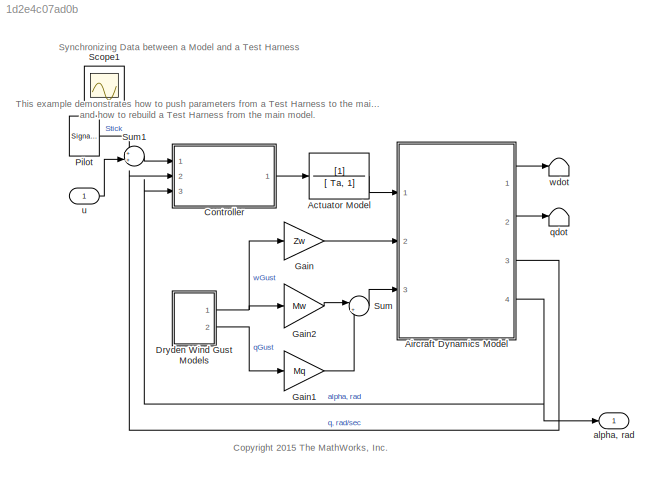
MODEL slx_1d2e4c07ad0b
KIND model
CONFIG AbsTol = 1e-6
CONFIG FixedStep = auto
CONFIG MaxStep = auto
CONFIG MinStep = auto
CONFIG RelTol = 1e-4
CONFIG SampleTimeConstraint = Unconstrained
CONFIG Solver = ode23
CONFIG SolverMode = SingleTasking
CONFIG SolverName = ode23
CONFIG StartTime = 0.0
CONFIG StopTime = 60
WORKSPACE source: MATLAB code (in-file)
WORKSPACE code: slexAircraftData
BLOCK [TransferFcn] Actuator Model
  Denominator = [ Ta, 1]
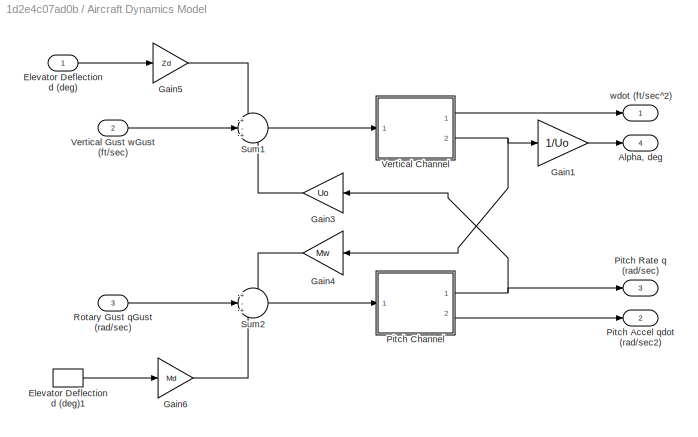
BLOCK [SubSystem] Aircraft Dynamics Model
  Ports = [3, 4]
  RequestExecContextInheritance = off
  Variant = off
BLOCK [Outport] Aircraft Dynamics Model/Alpha, deg
  IconDisplay = Port number
  InitialOutput = 0
  Port = 4
BLOCK [Inport] Aircraft Dynamics Model/Elevator Deflection d (deg)
  IconDisplay = Port number
BLOCK [InportShadow] Aircraft Dynamics Model/Elevator Deflection d (deg)1
  IconDisplay = Port number
BLOCK [Gain] Aircraft Dynamics Model/Gain1
  Gain = 1/Uo
BLOCK [Gain] Aircraft Dynamics Model/Gain3
  Gain = Uo
BLOCK [Gain] Aircraft Dynamics Model/Gain4
  Gain = Mw
BLOCK [Gain] Aircraft Dynamics Model/Gain5
  Gain = Zd
BLOCK [Gain] Aircraft Dynamics Model/Gain6
  Gain = Md
BLOCK [Outport] Aircraft Dynamics Model/Pitch Accel qdot (rad//sec2)
  IconDisplay = Port number
  InitialOutput = 0
  Port = 2
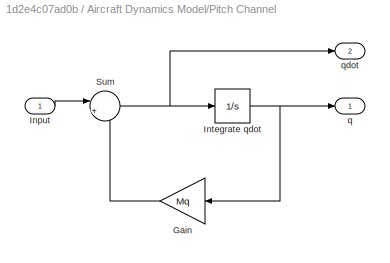
BLOCK [SubSystem] Aircraft Dynamics Model/Pitch Channel
  Ports = [1, 2]
  RequestExecContextInheritance = off
  Variant = off
BLOCK [Gain] Aircraft Dynamics Model/Pitch Channel/Gain
  Gain = Mq
BLOCK [Inport] Aircraft Dynamics Model/Pitch Channel/Input
  IconDisplay = Port number
BLOCK [Integrator] Aircraft Dynamics Model/Pitch Channel/Integrate qdot
  Ports = [1, 1]
BLOCK [Sum] Aircraft Dynamics Model/Pitch Channel/Sum
  IconShape = round
  Inputs = |++
  Ports = [2, 1]
BLOCK [Outport] Aircraft Dynamics Model/Pitch Channel/q
  IconDisplay = Port number
  InitialOutput = 0
BLOCK [Outport] Aircraft Dynamics Model/Pitch Channel/qdot
  IconDisplay = Port number
  InitialOutput = 0
  Port = 2
BLOCK [Outport] Aircraft Dynamics Model/Pitch Rate q (rad//sec)
  IconDisplay = Port number
  InitialOutput = 0
  Port = 3
BLOCK [Inport] Aircraft Dynamics Model/Rotary Gust qGust (rad//sec)
  IconDisplay = Port number
  Port = 3
BLOCK [Sum] Aircraft Dynamics Model/Sum1
  IconShape = round
  Inputs = +-+
  Ports = [3, 1]
BLOCK [Sum] Aircraft Dynamics Model/Sum2
  IconShape = round
  Inputs = +-+
  Ports = [3, 1]
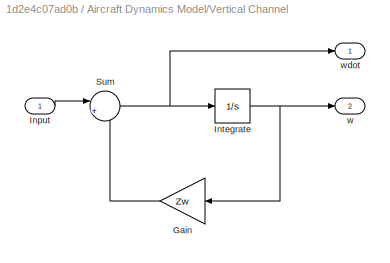
BLOCK [SubSystem] Aircraft Dynamics Model/Vertical Channel
  Ports = [1, 2]
  RequestExecContextInheritance = off
  Variant = off
BLOCK [Gain] Aircraft Dynamics Model/Vertical Channel/Gain
  Gain = Zw
BLOCK [Inport] Aircraft Dynamics Model/Vertical Channel/Input
  IconDisplay = Port number
BLOCK [Integrator] Aircraft Dynamics Model/Vertical Channel/Integrate
  Ports = [1, 1]
BLOCK [Sum] Aircraft Dynamics Model/Vertical Channel/Sum
  IconShape = round
  Inputs = |++
  Ports = [2, 1]
BLOCK [Outport] Aircraft Dynamics Model/Vertical Channel/w
  IconDisplay = Port number
  InitialOutput = 0
  Port = 2
BLOCK [Outport] Aircraft Dynamics Model/Vertical Channel/wdot
  IconDisplay = Port number
  InitialOutput = 0
BLOCK [Inport] Aircraft Dynamics Model/Vertical Gust wGust (ft//sec)
  IconDisplay = Port number
  Port = 2
BLOCK [Outport] Aircraft Dynamics Model/wdot (ft//sec^2)
  IconDisplay = Port number
  InitialOutput = 0
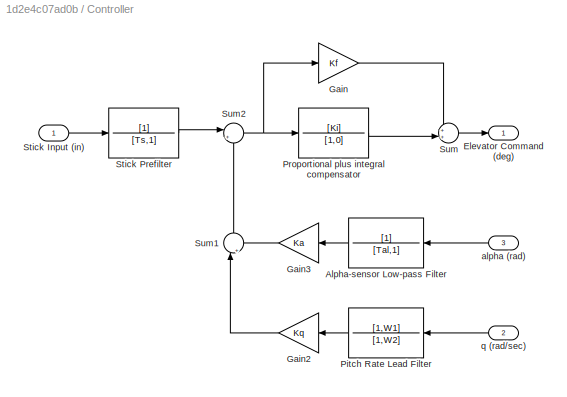
BLOCK [SubSystem] Controller
  Ports = [3, 1]
  RequestExecContextInheritance = off
  Variant = off
BLOCK [TransferFcn] Controller/Alpha-sensor Low-pass Filter
  Denominator = [Tal,1]
BLOCK [Outport] Controller/Elevator Command (deg)
  IconDisplay = Port number
  InitialOutput = 0
BLOCK [Gain] Controller/Gain
  Gain = Kf
BLOCK [Gain] Controller/Gain2
  Gain = Kq
BLOCK [Gain] Controller/Gain3
  Gain = Ka
BLOCK [TransferFcn] Controller/Pitch Rate Lead Filter
  Denominator = [1,W2]
  Numerator = [1,W1]
BLOCK [TransferFcn] Controller/Proportional plus integral compensator
  Denominator = [1,0]
  Numerator = [Ki]
BLOCK [Inport] Controller/Stick Input (in)
  IconDisplay = Port number
BLOCK [TransferFcn] Controller/Stick Prefilter
  Denominator = [Ts,1]
BLOCK [Sum] Controller/Sum
  IconShape = round
  Inputs = ++|
  Ports = [2, 1]
BLOCK [Sum] Controller/Sum1
  IconShape = round
  Inputs = |++
  Ports = [2, 1]
BLOCK [Sum] Controller/Sum2
  IconShape = round
  Inputs = |+-
  Ports = [2, 1]
BLOCK [Inport] Controller/alpha (rad)
  IconDisplay = Port number
  Port = 3
BLOCK [Inport] Controller/q (rad//sec)
  IconDisplay = Port number
  Port = 2
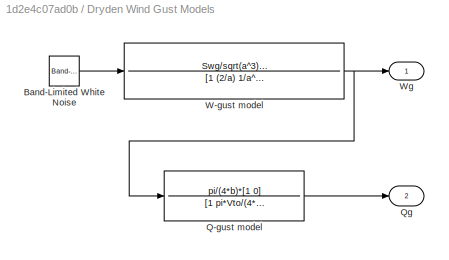
BLOCK [SubSystem] Dryden Wind Gust Models
  Ports = [0, 2]
  RequestExecContextInheritance = off
  Variant = off
BLOCK [Reference] Dryden Wind Gust Models/Band-Limited White Noise  REF=simulink/Sources/Band-Limited
White Noise
  Ports = [0, 1]
  SourceBlock = simulink/Sources/Band-Limited\nWhite Noise
  SourceType = Band-Limited White Noise.
BLOCK [TransferFcn] Dryden Wind Gust Models/Q-gust model
  Denominator = [1 pi*Vto/(4*b)]
  Numerator = pi/(4*b)*[1 0]
BLOCK [Outport] Dryden Wind Gust Models/Qg
  IconDisplay = Port number
  InitialOutput = 0
  Port = 2
BLOCK [TransferFcn] Dryden Wind Gust Models/W-gust model
  Denominator = [1 (2/a) 1/a^2]
  Numerator = Swg/sqrt(a^3)*[sqrt(3)*a,1]
BLOCK [Outport] Dryden Wind Gust Models/Wg
  IconDisplay = Port number
  InitialOutput = 0
BLOCK [Gain] Gain
  Gain = Zw
BLOCK [Gain] Gain1
  Gain = Mq
BLOCK [Gain] Gain2
  Gain = Mw
BLOCK [SignalGenerator] Pilot
  Amplitude = 0.5
  Frequency = 0.500000
  Ports = [0, 1]
  Units = rad/sec
  WaveForm = square
BLOCK [Scope] Scope1
  IOType = viewer
  Ports = []
  ScopeSpecificationString = C++SS(StrPVP('Location','[796, 129, 1110, 551]'),StrPVP('Open','off'),MxPVP('AxesTitles',24,'struct(''axes1'',''%<SignalLabel>'',''axes2'',''%<SignalLabel>'')'),MxPVP('ScopeGraphics',28,'struct(''FigureColor'',''[0.5 0.5 0.5]'',''AxesColor'',''[0 0 0]'',''AxesTickColor'',''[1 1 1]'',''LineColors'',''[1 1 0;1 0 1;0 1 1;1 0 0;0 1 0;0 0 1]'',''LineStyles'',''-|-|-|-|-|-'',''LineWidths'',''[0.5 0.5 0....<+312ch>
BLOCK [Sum] Sum
  IconShape = round
  Inputs = |++
  Ports = [2, 1]
BLOCK [Sum] Sum1
  IconShape = round
  Inputs = ++|
  Ports = [2, 1]
BLOCK [Outport] alpha, rad
  IconDisplay = Port number
  InitialOutput = 0
BLOCK [Terminator] qdot
BLOCK [Inport] u
  IconDisplay = Port number
BLOCK [Terminator] wdot
ANNOTATION (root): <copyright redacted>
ANNOTATION (root): Synchronizing Data between a Model and a Test Harness
ANNOTATION (root): This example demonstrates how to push parameters from a Test Harness to the main model, and how to rebuild a Test Harness from the main model.
LINE Actuator Model:1 -> Aircraft Dynamics Model:1
LINE Aircraft Dynamics Model/Elevator Deflection d (deg)1:1 -> Aircraft Dynamics Model/Gain6:1
LINE Aircraft Dynamics Model/Elevator Deflection d (deg):1 -> Aircraft Dynamics Model/Gain5:1
LINE Aircraft Dynamics Model/Gain1:1 -> Aircraft Dynamics Model/Alpha, deg:1
LINE Aircraft Dynamics Model/Gain3:1 -> Aircraft Dynamics Model/Sum1:3
LINE Aircraft Dynamics Model/Gain4:1 -> Aircraft Dynamics Model/Sum2:1
LINE Aircraft Dynamics Model/Gain5:1 -> Aircraft Dynamics Model/Sum1:1
LINE Aircraft Dynamics Model/Gain6:1 -> Aircraft Dynamics Model/Sum2:3
LINE Aircraft Dynamics Model/Pitch Channel/Gain:1 -> Aircraft Dynamics Model/Pitch Channel/Sum:2
LINE Aircraft Dynamics Model/Pitch Channel/Input:1 -> Aircraft Dynamics Model/Pitch Channel/Sum:1
NET Aircraft Dynamics Model/Pitch Channel/Integrate qdot:1 -> Aircraft Dynamics Model/Pitch Channel/Gain:1, Aircraft Dynamics Model/Pitch Channel/q:1
NET Aircraft Dynamics Model/Pitch Channel/Sum:1 -> Aircraft Dynamics Model/Pitch Channel/Integrate qdot:1, Aircraft Dynamics Model/Pitch Channel/qdot:1
NET Aircraft Dynamics Model/Pitch Channel:1 -> Aircraft Dynamics Model/Gain3:1, Aircraft Dynamics Model/Pitch Rate q (rad//sec):1
LINE Aircraft Dynamics Model/Pitch Channel:2 -> Aircraft Dynamics Model/Pitch Accel qdot (rad//sec2):1
LINE Aircraft Dynamics Model/Rotary Gust qGust (rad//sec):1 -> Aircraft Dynamics Model/Sum2:2
LINE Aircraft Dynamics Model/Sum1:1 -> Aircraft Dynamics Model/Vertical Channel:1
LINE Aircraft Dynamics Model/Sum2:1 -> Aircraft Dynamics Model/Pitch Channel:1
LINE Aircraft Dynamics Model/Vertical Channel/Gain:1 -> Aircraft Dynamics Model/Vertical Channel/Sum:2
LINE Aircraft Dynamics Model/Vertical Channel/Input:1 -> Aircraft Dynamics Model/Vertical Channel/Sum:1
NET Aircraft Dynamics Model/Vertical Channel/Integrate:1 -> Aircraft Dynamics Model/Vertical Channel/Gain:1, Aircraft Dynamics Model/Vertical Channel/w:1
NET Aircraft Dynamics Model/Vertical Channel/Sum:1 -> Aircraft Dynamics Model/Vertical Channel/Integrate:1, Aircraft Dynamics Model/Vertical Channel/wdot:1
LINE Aircraft Dynamics Model/Vertical Channel:1 -> Aircraft Dynamics Model/wdot (ft//sec^2):1
NET Aircraft Dynamics Model/Vertical Channel:2 -> Aircraft Dynamics Model/Gain1:1, Aircraft Dynamics Model/Gain4:1
LINE Aircraft Dynamics Model/Vertical Gust wGust (ft//sec):1 -> Aircraft Dynamics Model/Sum1:2
LINE Aircraft Dynamics Model:1 -> wdot:1
LINE Aircraft Dynamics Model:2 -> qdot:1
LINE Aircraft Dynamics Model:3 -> Controller:2
NET Aircraft Dynamics Model:4 -> Controller:3, alpha, rad:1
LINE Controller/Alpha-sensor Low-pass Filter:1 -> Controller/Gain3:1
LINE Controller/Gain2:1 -> Controller/Sum1:1
LINE Controller/Gain3:1 -> Controller/Sum1:2
LINE Controller/Gain:1 -> Controller/Sum:1
LINE Controller/Pitch Rate Lead Filter:1 -> Controller/Gain2:1
LINE Controller/Proportional plus integral compensator:1 -> Controller/Sum:2
LINE Controller/Stick Input (in):1 -> Controller/Stick Prefilter:1
LINE Controller/Stick Prefilter:1 -> Controller/Sum2:1
LINE Controller/Sum1:1 -> Controller/Sum2:2
NET Controller/Sum2:1 -> Controller/Gain:1, Controller/Proportional plus integral compensator:1
LINE Controller/Sum:1 -> Controller/Elevator Command (deg):1
LINE Controller/alpha (rad):1 -> Controller/Alpha-sensor Low-pass Filter:1
LINE Controller/q (rad//sec):1 -> Controller/Pitch Rate Lead Filter:1
LINE Controller:1 -> Actuator Model:1
LINE Dryden Wind Gust Models/Band-Limited White Noise:1 -> Dryden Wind Gust Models/W-gust model:1
LINE Dryden Wind Gust Models/Q-gust model:1 -> Dryden Wind Gust Models/Qg:1
NET Dryden Wind Gust Models/W-gust model:1 -> Dryden Wind Gust Models/Q-gust model:1, Dryden Wind Gust Models/Wg:1
NET Dryden Wind Gust Models:1 -> Gain2:1, Gain:1
LINE Dryden Wind Gust Models:2 -> Gain1:1
LINE Gain1:1 -> Sum:2
LINE Gain2:1 -> Sum:1
LINE Gain:1 -> Aircraft Dynamics Model:2
LINE Pilot:1 -> Sum1:1
LINE Sum1:1 -> Controller:1
LINE Sum:1 -> Aircraft Dynamics Model:3
LINE u:1 -> Sum1:2
note: NET lines group one-source signal fan-out (src -> all destinations, sorted); 1:1 wires keep LINE
